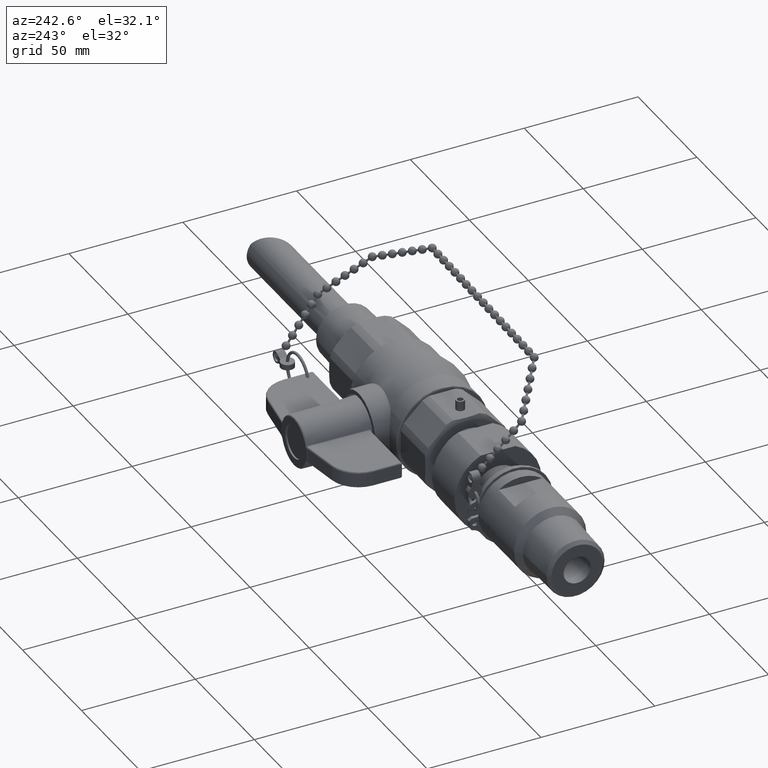
[diagram: clean part render]
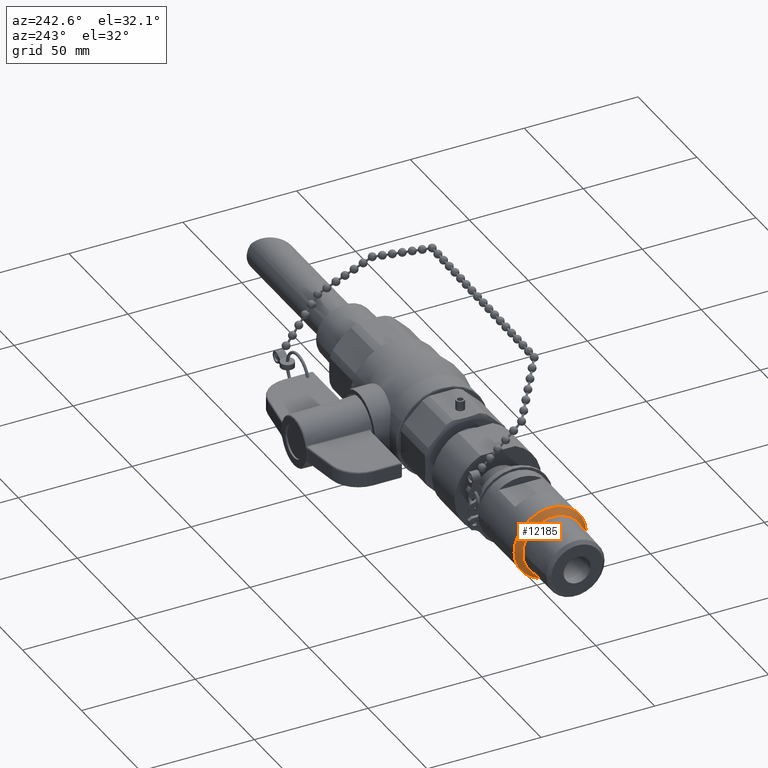
[diagram: same view with one face highlighted and labeled with its STEP entity id]
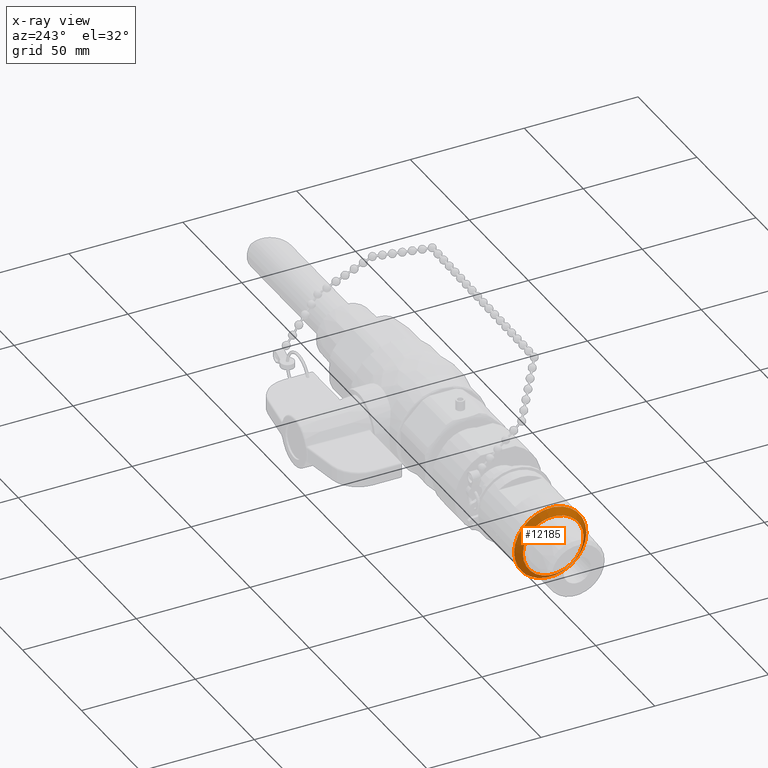
[diagram: x-ray of the same camera — body ghosted, the highlighted face saturated]
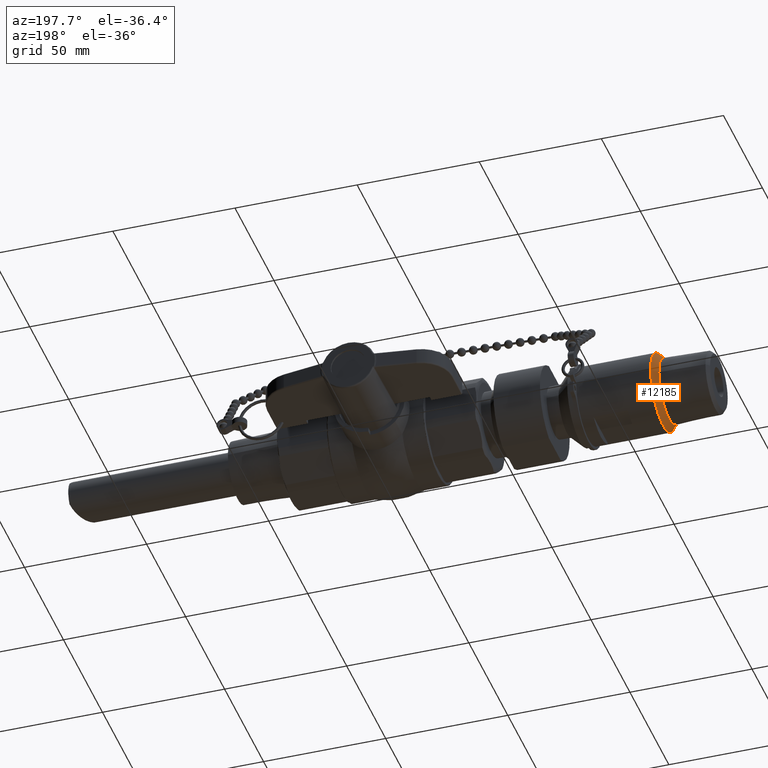
[diagram: same view with one face highlighted and labeled with its STEP entity id]
A machine part, auxiliary view. The second image highlights one B-rep face of the part: STEP entity #12185.
The next image is the same camera in x-ray: the body ghosted, the highlighted face saturated — about 0% of this face is hidden behind the body in this view.
A second angle (auxiliary view) of the same face is appended — the face is thin or edge-on in the first view.
In plain terms, the highlighted conical surface has half-angle 45 deg.
Its self-contained STEP definition (entity closure, byte-faithful):
#12158=CARTESIAN_POINT('',(-4.436999999999999,2.492252E-016,-8.866776E-016));
#12159=DIRECTION('',(1.0,-4.312304E-031,1.431812E-016));
#12160=DIRECTION('',(0.0,1.0,0.0));
#12161=AXIS2_PLACEMENT_3D('',#12158,#12159,#12160);
#12162=CONICAL_SURFACE('',#12161,0.575000000000000,45.000000000000050);
#12163=CARTESIAN_POINT('',(-4.387000000000001,0.625000000000000,-8.795185E-016));
#12164=VERTEX_POINT('',#12163);
#12165=CARTESIAN_POINT('',(-4.387000000000001,2.492252E-016,-8.795185E-016));
#12166=DIRECTION('',(1.0,0.0,0.0));
#12167=DIRECTION('',(0.0,1.0,0.0));
#12168=AXIS2_PLACEMENT_3D('',#12165,#12166,#12167);
#12169=CIRCLE('',#12168,0.625000000000000);
#12170=EDGE_CURVE('',#12164,#12164,#12169,.T.);
#12171=ORIENTED_EDGE('',*,*,#12170,.F.);
#12172=EDGE_LOOP('',(#12171));
#12173=FACE_OUTER_BOUND('',#12172,.T.);
#12174=CARTESIAN_POINT('',(-4.487000000000000,0.525000000000000,-8.938366E-016));
#12175=VERTEX_POINT('',#12174);
#12176=CARTESIAN_POINT('',(-4.487000000000000,2.492252E-016,-8.938366E-016));
#12177=DIRECTION('',(1.0,0.0,0.0));
#12178=DIRECTION('',(0.0,1.0,0.0));
#12179=AXIS2_PLACEMENT_3D('',#12176,#12177,#12178);
#12180=CIRCLE('',#12179,0.525000000000000);
#12181=EDGE_CURVE('',#12175,#12175,#12180,.T.);
#12182=ORIENTED_EDGE('',*,*,#12181,.T.);
#12183=EDGE_LOOP('',(#12182));
#12184=FACE_BOUND('',#12183,.T.);
#12185=ADVANCED_FACE('',(#12173,#12184),#12162,.T.);